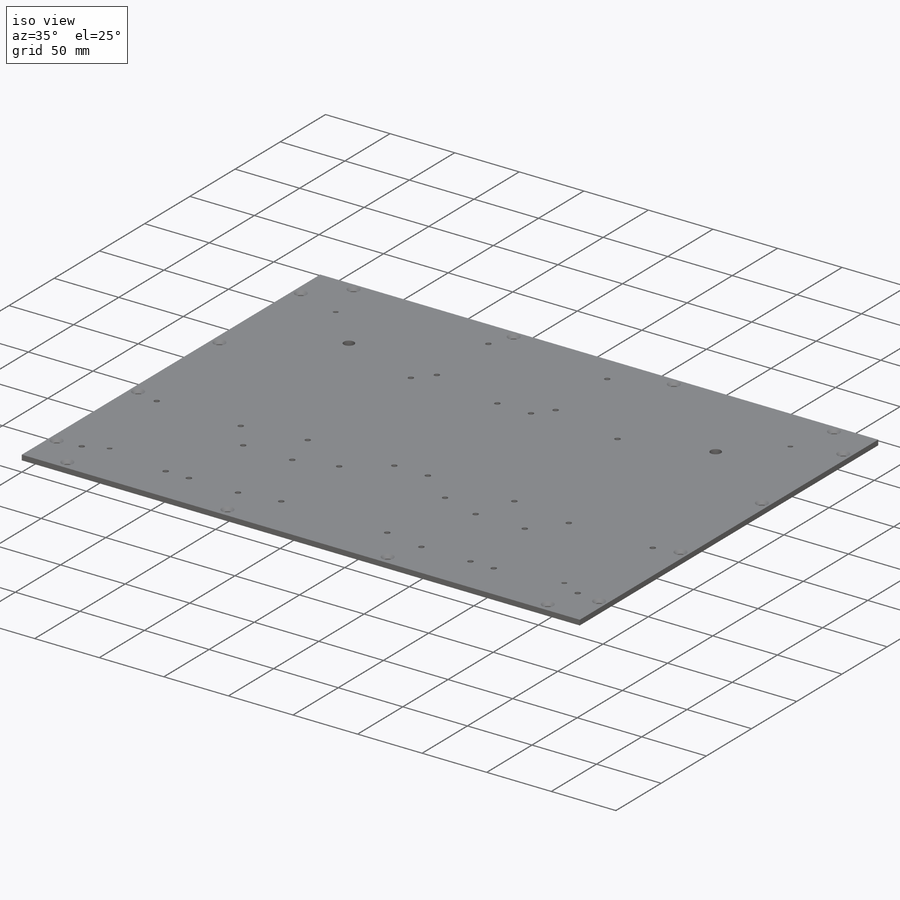
[diagram: iso view]
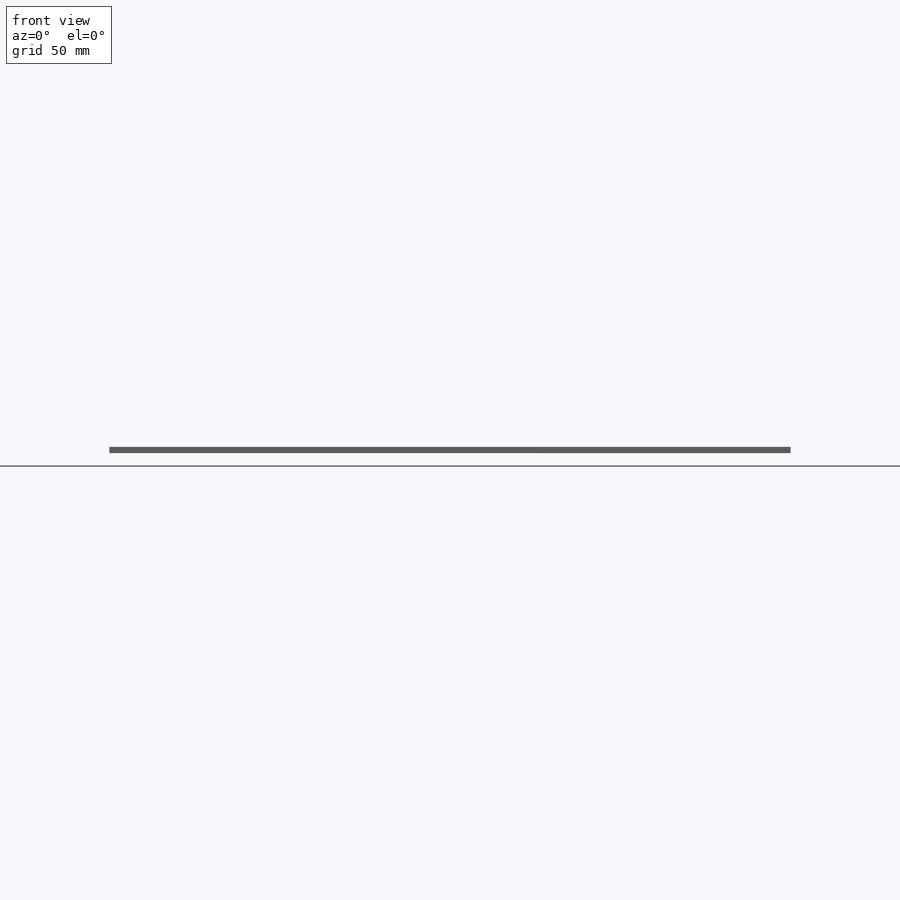
[diagram: front view]
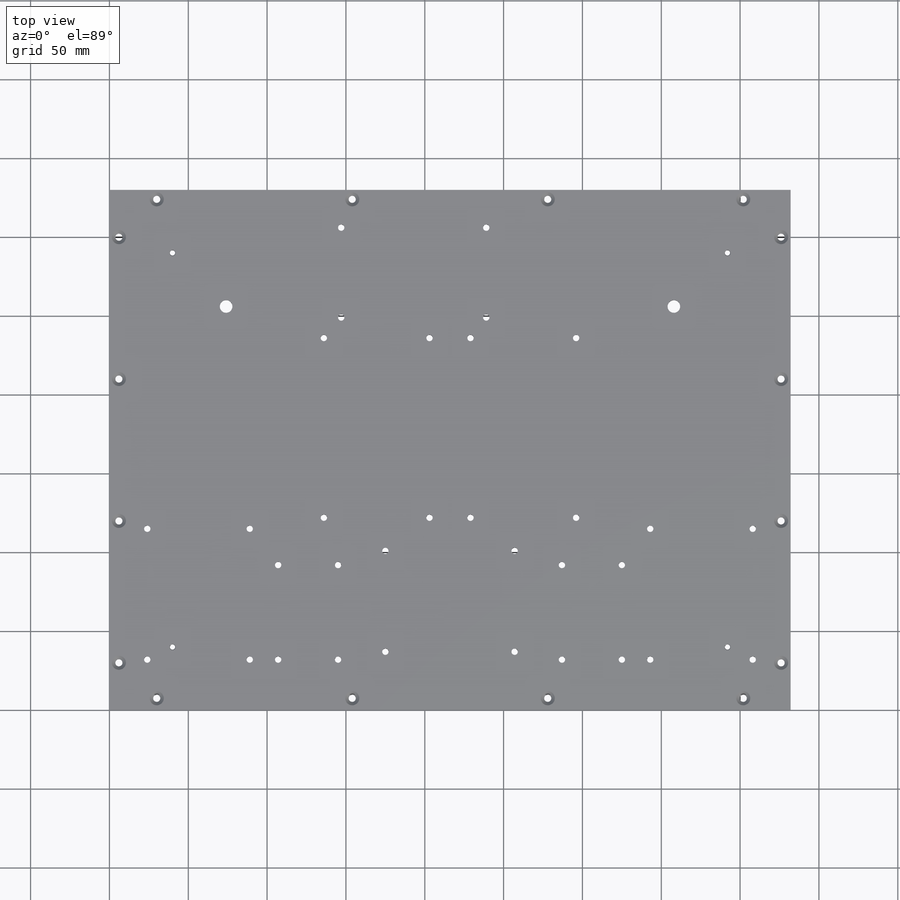
[diagram: top view]
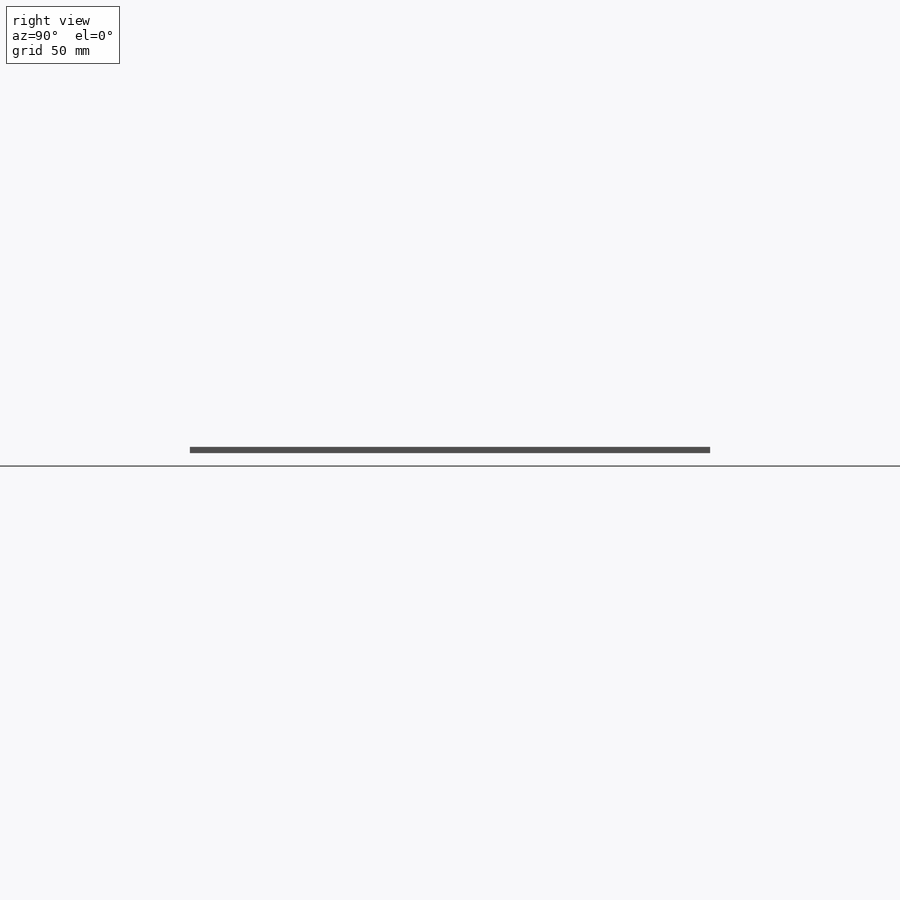
[diagram: right view]
SOLIDWORKS PART (.sldprt)
format: sldprt  version: not decoded by parser v0  size: 552,960 bytes
history: native  units: mm
features: sketch x13, hole x6, thread x4, plane x3, material x1, extrude x1, fillet x1 (+8 scaffold rows collapsed)
feature tree (37):
  scaffold x8  (default folders/planes/origin — collapsed)
  material  "6061 合金"
  plane  "前基準面"
  plane  "上基準面"
  plane  "右基準面"
  sketch  "草圖1"  dims[D1=432.0mm D2=330.0mm]
  extrude  "填料-伸長1"  Depth=4mm
  hole  "M4 六角凹錐坑螺釘的錐孔1"  [1 undecoded]
  sketch  "草圖3"  dims[D1=30.0mm D2=90.0mm D3=90.0mm D4=90.0mm D5=6.0mm D6=30.0mm D7=124.0mm D8=124.0mm D9=124.0mm D10=7.5mm D11=30.0mm D12=124.0mm D13=124.0mm D14=124.0mm D15=6.0mm D16=30.0mm D17=90.0mm D18=90.0mm D19=90.0mm D20=6.0mm]
  sketch  "草圖2"  dims[hole-wizard template sketch: 54 standard entries collapsed; hole parameters kept: c17.貫穿孔直徑=4.5mm c17.貫穿孔深度=4.0mm c17.近端錐孔直徑=8.96mm c17.D4=~3.666174mm c17.近端錐孔角度=90.0deg]
  fillet  "圓角1"  Radius=2mm
  hole  "Ø8.0 (8) 直徑孔2"  [1 undecoded]
  sketch  "草圖8"  dims[D1=74.0mm D2=74.0mm]
  sketch  "草圖7"  dims[hole-wizard template sketch: 59 standard entries collapsed; hole parameters kept: c18.貫穿孔直徑=8.0mm c18.貫穿孔深度=4.0mm]
  hole  "Ø4.0 (4) 直徑孔1"  [1 undecoded]
  sketch  "草圖10"  dims[D1=107.0mm D2=38.0mm D3=60.0mm D4=57.0mm D5=92.0mm D6=24.0mm D7=147.0mm D8=32.0mm]
  sketch  "草圖9"  dims[hole-wizard template sketch: 46 standard entries collapsed; hole parameters kept: c15.鑽孔直徑=4.0mm c15.鑽孔深度=5.0mm c15.D3=~14.816244mm c15.導頭角度=118.0deg]
  hole  "M4 螺紋孔1"  [1 undecoded]
  sketch  "草圖12"  dims[D1=40.0mm D2=40.0mm D3=40.0mm D4=40.0mm]
  sketch  "草圖11"  dims[hole-wizard template sketch: 54 standard entries collapsed; hole parameters kept: c17.貫穿螺孔鑽直徑=3.3mm c17.貫穿螺孔鑽深度=4.0mm c17.近端錐孔直徑=4.05mm c17.D4=~3.666174mm c17.近端錐孔角度=90.0deg]
  thread  "鑽孔螺紋1"  Diameter=4mm  [1 undecoded]
  thread  "鑽孔螺紋2"  Diameter=4mm  [1 undecoded]
  thread  "鑽孔螺紋3"  Diameter=4mm  [1 undecoded]
  thread  "鑽孔螺紋4"  Diameter=4mm  [1 undecoded]
  hole  "Ø4.0 (4) 直徑孔2"  [1 undecoded]
  sketch  "草圖14"  dims[D1=32.0mm D2=83.0mm D3=65.0mm D4=24.0mm D5=67.0mm D6=122.0mm D7=114.0mm D8=136.0mm]
  sketch  "草圖13"  dims[hole-wizard template sketch: 59 standard entries collapsed; hole parameters kept: c18.貫穿孔直徑=4.0mm c18.貫穿孔深度=4.0mm]
  hole  "Ø4.0 (4) 直徑孔3"  [1 undecoded]
  sketch  "草圖16"  dims[D1=64.0mm D2=82.0mm D3=175.0mm D4=37.0mm]
  sketch  "草圖15"  dims[hole-wizard template sketch: 46 standard entries collapsed; hole parameters kept: c15.鑽孔直徑=4.0mm c15.鑽孔深度=5.0mm c15.D3=~14.816244mm c15.導頭角度=118.0deg]
decode coverage: 19 of 25 modeling features carry decoded parameters
note: ~ marks probable driven/reference dimensions
note: 10 parameter values undecoded
summary: no parameter record found for 6 features
note: suppression state not decoded; provenance and decode notes live in map.json
